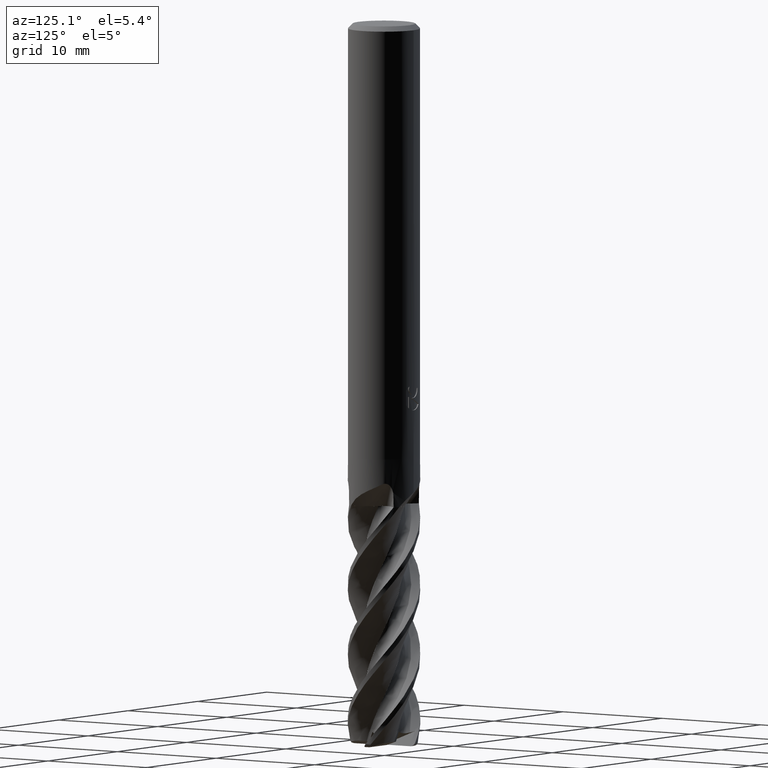
[diagram: clean part render]
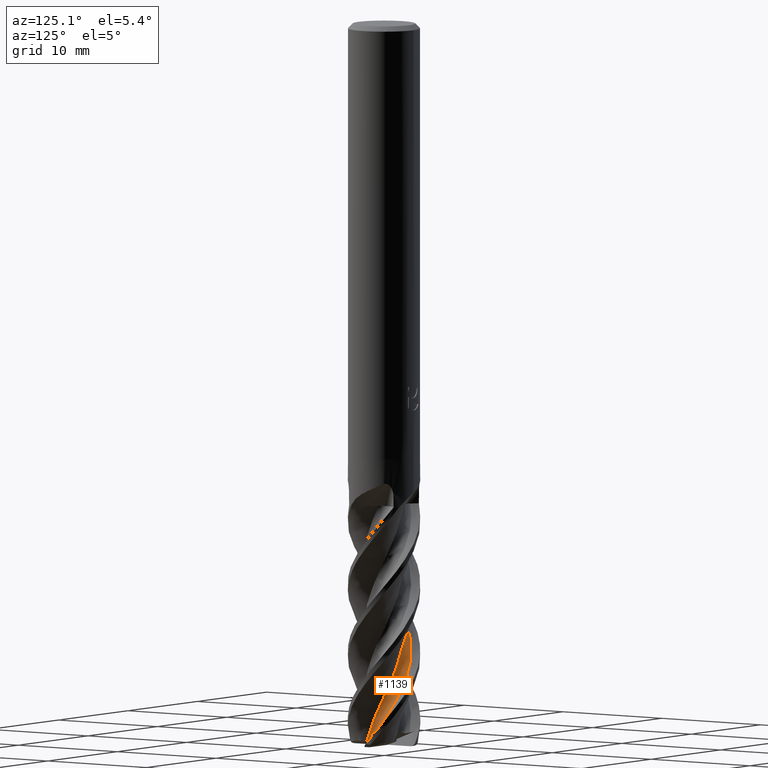
[diagram: same view with one face highlighted and labeled with its STEP entity id]
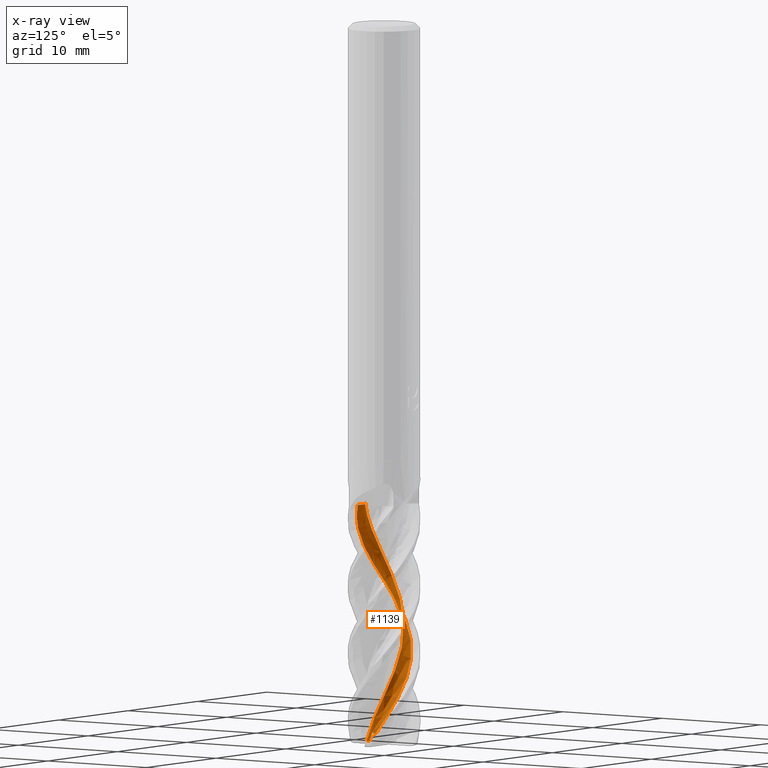
[diagram: x-ray of the same camera — body ghosted, the highlighted face saturated]
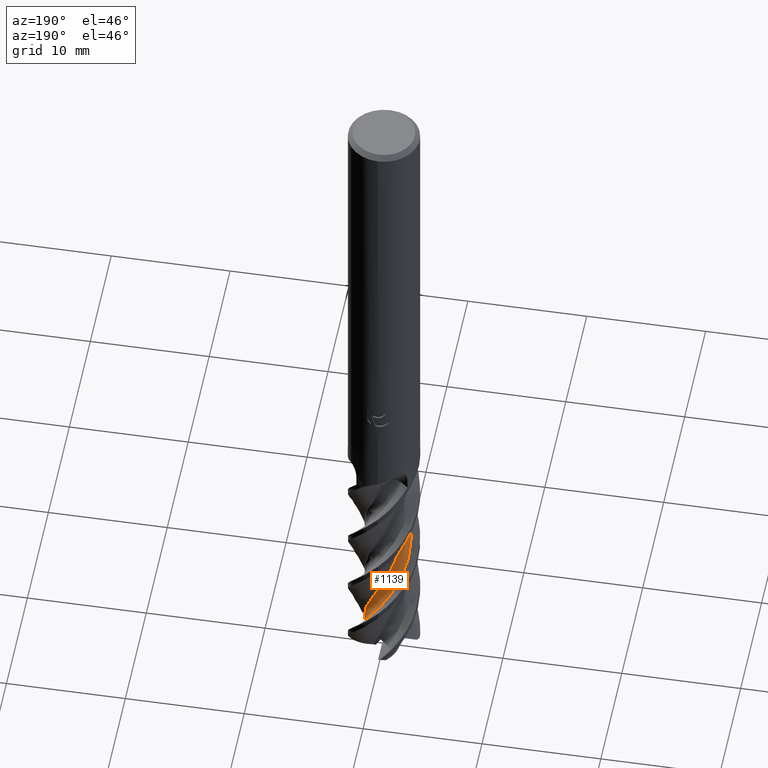
[diagram: same view with one face highlighted and labeled with its STEP entity id]
A machine part, auxiliary view. The second image highlights one B-rep face of the part: STEP entity #1139.
The next image is the same camera in x-ray: the body ghosted, the highlighted face saturated — about 0% of this face is hidden behind the body in this view.
A second angle (auxiliary view) of the same face is appended — the face is thin or edge-on in the first view.
In plain terms, the highlighted face is a freeform B-spline surface patch.
Its self-contained STEP definition (entity closure, byte-faithful):
#657=VERTEX_POINT('',#1724);
#757=EDGE_CURVE('',#899,#989,#1830,.T.);
#821=VERTEX_POINT('',#1900);
#879=EDGE_CURVE('',#1553,#821,#1960,.T.);
#899=VERTEX_POINT('',#1981);
#989=VERTEX_POINT('',#2084);
#1019=EDGE_CURVE('',#657,#1493,#2118,.T.);
#1139=ADVANCED_FACE('',(#2243),#2244,.T.);
#1277=EDGE_CURVE('',#1553,#657,#2395,.T.);
#1301=EDGE_CURVE('',#1493,#899,#2423,.T.);
#1383=EDGE_CURVE('',#989,#821,#2515,.T.);
#1493=VERTEX_POINT('',#2638);
#1553=VERTEX_POINT('',#2704);
#1724=CARTESIAN_POINT('',(1.55913148683489,-0.0771777074978753,-58.8312620025619));
#1830=B_SPLINE_CURVE_WITH_KNOTS('',3,(#4315,#4316,#4317,#4318,#4319,#4320,#4321,#4322,#4323,#4324,#4325,#4326,#4327,#4328,#4329,#4330,#4331,#4332,#4333,#4334,#4335,#4336,#4337,#4338,#4339,#4340,#4341,#4342,#4343,#4344,#4345,#4346,#4347,#4348,#4349,#4350,#4351,#4352,#4353,#4354,#4355,#4356,#4357,#4358,#4359,#4360,#4361,#4362,#4363,#4364,#4365,#4366,#4367,#4368,#4369,#4370,#4371,#4372,#4373,#4374,#4375,#4376,#4377,#4378,#4379,#4380,#4381,#4382,#4383,#4384,#4385,#4386),.UNSPECIFIED.,.F.,.F.,(4,2,2,2,2,2,2,2,2,2,2,2,2,2,2,2,2,2,2,2,2,2,2,2,2,2,2,2,2,2,2,2,2,2,2,4),(0.0,0.448318297829255,0.689089032956388,1.39962167265967,2.31232830153638,3.17750321488018,4.0669254036721,4.5764898940069,4.79388942944048,4.9822065424042,6.77223869122831,7.15940957587817,8.60558348584525,9.42205703376254,10.2644633741601,10.7461551644283,11.1789654040422,11.8625588402245,12.7524742966412,13.5908774424893,14.4561504792424,14.9472118092792,15.1609958396345,15.255651815448,17.0890225379084,17.5651052170319,18.2296710708743,19.0666260739815,19.9016060216238,20.7576823399661,21.1872094138051,21.4026894418029,21.5105964695324,21.5645873825565,21.5915915285666,21.6186538586869),.UNSPECIFIED.);
#1900=CARTESIAN_POINT('',(1.73794855813481,-1.44163714024313,-40.0000000000001));
#1960=B_SPLINE_CURVE_WITH_KNOTS('',3,(#5402,#5403,#5404,#5405,#5406,#5407,#5408,#5409,#5410,#5411,#5412,#5413,#5414,#5415,#5416,#5417,#5418,#5419,#5420,#5421,#5422,#5423,#5424,#5425,#5426,#5427,#5428,#5429,#5430,#5431,#5432,#5433,#5434,#5435,#5436,#5437,#5438,#5439,#5440,#5441,#5442,#5443,#5444,#5445,#5446,#5447,#5448,#5449,#5450,#5451,#5452,#5453,#5454),.UNSPECIFIED.,.F.,.F.,(4,1,2,1,2,1,2,1,2,1,2,1,2,1,2,1,2,1,2,1,2,1,2,1,2,1,2,1,2,1,2,1,2,1,4),(0.0,0.501751699894272,1.00350339978854,1.50525509968282,2.00700679957709,3.01051019936563,4.01401359915418,5.01751699894272,6.02102039873127,7.02452379851981,8.02802719830835,9.0315305980969,10.0350339978854,11.038537397674,12.0420407974625,13.0455441972511,14.0490475970396,15.0525509968282,16.0560543966167,17.0595577964053,18.0630611961938,19.0665645959823,20.0700679957709,21.0735713955594,22.077074795348,23.0805781951365,24.0840815949251,25.0875849947136,26.0910883945022,27.0945917942907,28.0980951940792,29.1015985938678,30.1051019936563,31.1086053934449,32.1121087932334),.UNSPECIFIED.);
#1981=CARTESIAN_POINT('',(1.47659576428755,-0.713407268816872,-59.6529244441849));
#2084=CARTESIAN_POINT('',(0.536014604338402,-1.54993666711349,-40.0));
#2118=B_SPLINE_CURVE_WITH_KNOTS('',3,(#6595,#6596,#6597,#6598,#6599,#6600,#6601,#6602,#6603,#6604),.UNSPECIFIED.,.F.,.F.,(4,2,2,2,4),(0.0,0.716243730236501,1.30451458158121,2.13571568332867,3.58329870178732),.UNSPECIFIED.);
#2243=FACE_OUTER_BOUND('',#7437,.T.);
#2244=B_SPLINE_SURFACE_WITH_KNOTS('',3,3,((#7438,#7439,#7440,#7441,#7442,#7443,#7444,#7445,#7446,#7447,#7448,#7449,#7450,#7451,#7452,#7453,#7454,#7455,#7456,#7457,#7458,#7459,#7460,#7461,#7462,#7463,#7464,#7465,#7466,#7467,#7468,#7469,#7470,#7471,#7472,#7473,#7474,#7475,#7476,#7477,#7478,#7479,#7480,#7481,#7482,#7483,#7484,#7485,#7486,#7487,#7488,#7489,#7490),(#7491,#7492,#7493,#7494,#7495,#7496,#7497,#7498,#7499,#7500,#7501,#7502,#7503,#7504,#7505,#7506,#7507,#7508,#7509,#7510,#7511,#7512,#7513,#7514,#7515,#7516,#7517,#7518,#7519,#7520,#7521,#7522,#7523,#7524,#7525,#7526,#7527,#7528,#7529,#7530,#7531,#7532,#7533,#7534,#7535,#7536,#7537,#7538,#7539,#7540,#7541,#7542,#7543),(#7544,#7545,#7546,#7547,#7548,#7549,#7550,#7551,#7552,#7553,#7554,#7555,#7556,#7557,#7558,#7559,#7560,#7561,#7562,#7563,#7564,#7565,#7566,#7567,#7568,#7569,#7570,#7571,#7572,#7573,#7574,#7575,#7576,#7577,#7578,#7579,#7580,#7581,#7582,#7583,#7584,#7585,#7586,#7587,#7588,#7589,#7590,#7591,#7592,#7593,#7594,#7595,#7596),(#7597,#7598,#7599,#7600,#7601,#7602,#7603,#7604,#7605,#7606,#7607,#7608,#7609,#7610,#7611,#7612,#7613,#7614,#7615,#7616,#7617,#7618,#7619,#7620,#7621,#7622,#7623,#7624,#7625,#7626,#7627,#7628,#7629,#7630,#7631,#7632,#7633,#7634,#7635,#7636,#7637,#7638,#7639,#7640,#7641,#7642,#7643,#7644,#7645,#7646,#7647,#7648,#7649),(#7650,#7651,#7652,#7653,#7654,#7655,#7656,#7657,#7658,#7659,#7660,#7661,#7662,#7663,#7664,#7665,#7666,#7667,#7668,#7669,#7670,#7671,#7672,#7673,#7674,#7675,#7676,#7677,#7678,#7679,#7680,#7681,#7682,#7683,#7684,#7685,#7686,#7687,#7688,#7689,#7690,#7691,#7692,#7693,#7694,#7695,#7696,#7697,#7698,#7699,#7700,#7701,#7702),(#7703,#7704,#7705,#7706,#7707,#7708,#7709,#7710,#7711,#7712,#7713,#7714,#7715,#7716,#7717,#7718,#7719,#7720,#7721,#7722,#7723,#7724,#7725,#7726,#7727,#7728,#7729,#7730,#7731,#7732,#7733,#7734,#7735,#7736,#7737,#7738,#7739,#7740,#7741,#7742,#7743,#7744,#7745,#7746,#7747,#7748,#7749,#7750,#7751,#7752,#7753,#7754,#7755)),.UNSPECIFIED.,.F.,.F.,.F.,(4,1,1,4),(4,1,2,1,2,1,2,1,2,1,2,1,2,1,2,1,2,1,2,1,2,1,2,1,2,1,2,1,2,1,2,1,2,1,4),(-6.43607550507338E-016,0.58904862246113,1.17809724492226,1.57079632656301),(0.0,0.501751699894272,1.00350339978854,1.50525509968282,2.00700679957709,3.01051019936563,4.01401359915418,5.01751699894272,6.02102039873127,7.02452379851981,8.02802719830835,9.0315305980969,10.0350339978854,11.038537397674,12.0420407974625,13.0455441972511,14.0490475970396,15.0525509968282,16.0560543966167,17.0595577964053,18.0630611961938,19.0665645959823,20.0700679957709,21.0735713955594,22.077074795348,23.0805781951365,24.0840815949251,25.0875849947136,26.0910883945022,27.0945917942907,28.0980951940792,29.1015985938678,30.1051019936563,31.1086053934449,32.1121087932334),.UNSPECIFIED.);
#2395=B_SPLINE_CURVE_WITH_KNOTS('',3,(#9114,#9115,#9116,#9117,#9118,#9119,#9120,#9121,#9122,#9123,#9124,#9125),.UNSPECIFIED.,.F.,.F.,(4,2,2,2,2,4),(0.0,0.442692172549244,0.762251802725725,1.01287056097506,1.22746000787781,1.45453468452057),.UNSPECIFIED.);
#2423=B_SPLINE_CURVE_WITH_KNOTS('',3,(#9169,#9170,#9171,#9172,#9173,#9174),.UNSPECIFIED.,.F.,.F.,(4,2,4),(0.0,0.33291198769719,0.650480489708979),.UNSPECIFIED.);
#2515=B_SPLINE_CURVE_WITH_KNOTS('',3,(#9756,#9757,#9758,#9759,#9760,#9761,#9762,#9763,#9764,#9765),.UNSPECIFIED.,.F.,.F.,(4,2,2,2,4),(0.0,0.3370134811731,0.674017681348794,1.01098296488401,1.34683004819463),.UNSPECIFIED.);
#2638=CARTESIAN_POINT('',(1.5027018054964,-0.421525296245017,-59.6444420772056));
#2704=CARTESIAN_POINT('',(2.16085376224468,0.655638816819924,-58.9342687731543));
#4315=CARTESIAN_POINT('',(1.2708138315464,-1.03714272322862,-60.4800060391713));
#4316=CARTESIAN_POINT('',(1.31009467769503,-0.988992490417532,-60.3440990333739));
#4317=CARTESIAN_POINT('',(1.34696826698313,-0.938127325940999,-60.2082600505392));
#4318=CARTESIAN_POINT('',(1.39946443478904,-0.855822527664659,-60.0002880644806));
#4319=CARTESIAN_POINT('',(1.41670830110982,-0.826839384949345,-59.9291209013588));
#4320=CARTESIAN_POINT('',(1.48315583058622,-0.706963364362708,-59.6355323299367));
#4321=CARTESIAN_POINT('',(1.52383543544748,-0.614287040075743,-59.4142313470476));
#4322=CARTESIAN_POINT('',(1.59630997381078,-0.398185526136353,-58.9108493861637));
#4323=CARTESIAN_POINT('',(1.62295485370494,-0.271487907809502,-58.6250115597516));
#4324=CARTESIAN_POINT('',(1.64464711174925,-0.018685567966346,-58.0747574785094));
#4325=CARTESIAN_POINT('',(1.64110856665258,0.103492089494872,-57.8201806563551));
#4326=CARTESIAN_POINT('',(1.60727952968408,0.349362254373966,-57.2779855419565));
#4327=CARTESIAN_POINT('',(1.57612069095903,0.470981215618738,-56.9997611831579));
#4328=CARTESIAN_POINT('',(1.50586707499256,0.654350420889149,-56.5666957760843));
#4329=CARTESIAN_POINT('',(1.47566541977084,0.71995710894879,-56.4088173923558));
#4330=CARTESIAN_POINT('',(1.42585114287187,0.81122865597555,-56.1845923840802));
#4331=CARTESIAN_POINT('',(1.41008429343736,0.838247482767412,-56.1176092441095));
#4332=CARTESIAN_POINT('',(1.3790101453971,0.888087996045202,-55.992795478888));
#4333=CARTESIAN_POINT('',(1.36411495116912,0.910724863997028,-55.9355587856445));
#4334=CARTESIAN_POINT('',(1.19585206517698,1.15307845554441,-55.3047197125019));
#4335=CARTESIAN_POINT('',(0.994254397203297,1.33217766217585,-54.7058990127672));
#4336=CARTESIAN_POINT('',(0.704870792458906,1.48195682001742,-54.0089068268171));
#4337=CARTESIAN_POINT('',(0.65274947112296,1.5055224716259,-53.888587172664));
#4338=CARTESIAN_POINT('',(0.395067177436503,1.60641062640064,-53.2918203811194));
#4339=CARTESIAN_POINT('',(0.179257054909459,1.64510875971828,-52.8050237411787));
#4340=CARTESIAN_POINT('',(-0.161349965331898,1.63679690024158,-52.0665130486851));
#4341=CARTESIAN_POINT('',(-0.281918152271388,1.6199994429108,-51.8130974196396));
#4342=CARTESIAN_POINT('',(-0.522247680548175,1.55969732178807,-51.2719420312113));
#4343=CARTESIAN_POINT('',(-0.639773193622085,1.51547006738979,-50.9937792552351));
#4344=CARTESIAN_POINT('',(-0.814316683523978,1.42570554498139,-50.5610847300632));
#4345=CARTESIAN_POINT('',(-0.876138224702155,1.38861137750509,-50.4035394404701));
#4346=CARTESIAN_POINT('',(-0.989468058905748,1.30966181730216,-50.1057660622586));
#4347=CARTESIAN_POINT('',(-1.03861475672541,1.27074886660428,-49.9742205097089));
#4348=CARTESIAN_POINT('',(-1.16208006591474,1.16136959814202,-49.6204156080778));
#4349=CARTESIAN_POINT('',(-1.23048525650303,1.08860645422925,-49.4017602681391));
#4350=CARTESIAN_POINT('',(-1.37045774785407,0.910324737842679,-48.9007227108504));
#4351=CARTESIAN_POINT('',(-1.43810798428499,0.799803897358053,-48.6144794864634));
#4352=CARTESIAN_POINT('',(-1.54309226877594,0.569205685724291,-48.065308578782));
#4353=CARTESIAN_POINT('',(-1.58059649346378,0.45342044656556,-47.8119204386996));
#4354=CARTESIAN_POINT('',(-1.63123921487933,0.210876956138567,-47.270733526751));
#4355=CARTESIAN_POINT('',(-1.64274464397875,0.0858128806680697,-46.9925188735106));
#4356=CARTESIAN_POINT('',(-1.63816880618675,-0.109913622389978,-46.5609253614479));
#4357=CARTESIAN_POINT('',(-1.63185552669435,-0.181200559177668,-46.4045361194361));
#4358=CARTESIAN_POINT('',(-1.61576721050612,-0.28359162856578,-46.1810491139168));
#4359=CARTESIAN_POINT('',(-1.60995580919077,-0.314680205633067,-46.113336636279));
#4360=CARTESIAN_POINT('',(-1.60018941412389,-0.35953705329656,-46.0157944545649));
#4361=CARTESIAN_POINT('',(-1.59708577384519,-0.372941869256595,-45.9867222881712));
#4362=CARTESIAN_POINT('',(-1.52990658664745,-0.647979531688378,-45.3851552494854));
#4363=CARTESIAN_POINT('',(-1.40522683379839,-0.887763095225326,-44.7849261888191));
#4364=CARTESIAN_POINT('',(-1.1817686955124,-1.13934524515546,-44.0612179766546));
#4365=CARTESIAN_POINT('',(-1.1333434651266,-1.18724626054775,-43.918444802022));
#4366=CARTESIAN_POINT('',(-1.00954833490707,-1.2958073990598,-43.5635763134667));
#4367=CARTESIAN_POINT('',(-0.932949194735177,-1.35202569673258,-43.3550742208025));
#4368=CARTESIAN_POINT('',(-0.751927107890717,-1.46253808576178,-42.8860188955915));
#4369=CARTESIAN_POINT('',(-0.643943924183604,-1.51345911853932,-42.6223652653747));
#4370=CARTESIAN_POINT('',(-0.416717658855852,-1.59085855003355,-42.1012025798716));
#4371=CARTESIAN_POINT('',(-0.30101548096699,-1.61631741072854,-41.8547391800408));
#4372=CARTESIAN_POINT('',(-0.0624477790613409,-1.64326345943383,-41.331726342239));
#4373=CARTESIAN_POINT('',(0.0586075059878854,-1.64353887008601,-41.0638180574698));
#4374=CARTESIAN_POINT('',(0.237973256692141,-1.62407635752213,-40.6652858919245));
#4375=CARTESIAN_POINT('',(0.297842596482396,-1.61420440371852,-40.5320085860932));
#4376=CARTESIAN_POINT('',(0.387294304846473,-1.59416633756238,-40.3325427150106));
#4377=CARTESIAN_POINT('',(0.417129101217417,-1.58659225391418,-40.2659553636122));
#4378=CARTESIAN_POINT('',(0.46178563255315,-1.57387609174369,-40.1661649151538));
#4379=CARTESIAN_POINT('',(0.476668380097446,-1.56940704106222,-40.1328866944553));
#4380=CARTESIAN_POINT('',(0.498964628076339,-1.56235884235108,-40.082992952662));
#4381=CARTESIAN_POINT('',(0.506394732793333,-1.55995107862067,-40.0663596357687));
#4382=CARTESIAN_POINT('',(0.517532228859161,-1.55625258446455,-40.04141592779));
#4383=CARTESIAN_POINT('',(0.521244052492172,-1.55500506874,-40.0331010525986));
#4384=CARTESIAN_POINT('',(0.528672626559672,-1.55247838775755,-40.0164564174521));
#4385=CARTESIAN_POINT('',(0.532329486222413,-1.55121979753668,-40.0082613265218));
#4386=CARTESIAN_POINT('',(0.536082824204837,-1.54991291461822,-39.9998470659905));
#5402=CARTESIAN_POINT('',(-0.104521920003124,-2.25507902704957,-66.0));
#5403=CARTESIAN_POINT('',(-0.0863595626596556,-2.25671684860701,-65.8333447389798));
#5404=CARTESIAN_POINT('',(0.00442346643488775,-2.26284060116593,-65.4999667116456));
#5405=CARTESIAN_POINT('',(0.210748564281333,-2.25268491183224,-65.1665728902797));
#5406=CARTESIAN_POINT('',(0.469916493233361,-2.21222090505494,-64.8332852620598));
#5407=CARTESIAN_POINT('',(0.706760546838514,-2.1530546300289,-64.5000146810505));
#5408=CARTESIAN_POINT('',(0.904790923913086,-2.07110786554954,-64.1667040099055));
#5409=CARTESIAN_POINT('',(1.18046123553611,-1.93591240457044,-63.6666708099607));
#5410=CARTESIAN_POINT('',(1.51618221675526,-1.71047335058246,-62.9999671475129));
#5411=CARTESIAN_POINT('',(1.79140924574996,-1.39220704727707,-62.3332668169848));
#5412=CARTESIAN_POINT('',(2.02551926504348,-1.02162377259908,-61.6666264384753));
#5413=CARTESIAN_POINT('',(2.19535261525276,-0.637368999300194,-61.000000807459));
#5414=CARTESIAN_POINT('',(2.2573712230988,-0.224340833578408,-60.3333169815289));
#5415=CARTESIAN_POINT('',(2.25870435453589,0.209372942387658,-59.6666411326101));
#5416=CARTESIAN_POINT('',(2.19930056781462,0.624059005008884,-58.999987131966));
#5417=CARTESIAN_POINT('',(2.03215779362683,1.00814419839989,-58.3333012943724));
#5418=CARTESIAN_POINT('',(1.80308260736231,1.3763977034266,-57.6666365096374));
#5419=CARTESIAN_POINT('',(1.53301177842222,1.69584708705543,-56.9999897378046));
#5420=CARTESIAN_POINT('',(1.18788313413204,1.93263117238619,-56.333303633545));
#5421=CARTESIAN_POINT('',(0.798017837302391,2.12339515573225,-55.6666363965383));
#5422=CARTESIAN_POINT('',(0.399242822215125,2.2509431911134,-54.9999883881478));
#5423=CARTESIAN_POINT('',(-0.0190042383487804,2.26841771304909,-54.3333025443456));
#5424=CARTESIAN_POINT('',(-0.450526114096298,2.22320391577324,-53.6666356246618));
#5425=CARTESIAN_POINT('',(-0.856090526340095,2.11972150262846,-52.9999876585992));
#5426=CARTESIAN_POINT('',(-1.21986456624996,1.91259600728308,-52.3333017066065));
#5427=CARTESIAN_POINT('',(-1.56165650532089,1.6452497675045,-51.6666348036077));
#5428=CARTESIAN_POINT('',(-1.85050389224038,1.34229290693284,-50.9999868993309));
#5429=CARTESIAN_POINT('',(-2.04890489879511,0.973693771872742,-50.3333009699371));
#5430=CARTESIAN_POINT('',(-2.19671752884611,0.565729119386141,-49.6666340207814));
#5431=CARTESIAN_POINT('',(-2.28076347209921,0.155673185494231,-48.9999860752535));
#5432=CARTESIAN_POINT('',(-2.25331625117468,-0.26202830163969,-48.3333001460266));
#5433=CARTESIAN_POINT('',(-2.16210153057402,-0.686247849314329,-47.6666332218745));
#5434=CARTESIAN_POINT('',(-2.0157306609015,-1.07840033163929,-46.9999852896659));
#5435=CARTESIAN_POINT('',(-1.77080268319587,-1.41786906085446,-46.3332993575053));
#5436=CARTESIAN_POINT('',(-1.46836579595081,-1.72902354700192,-45.6666324289086));
#5437=CARTESIAN_POINT('',(-1.13619886413586,-1.98372561290375,-44.9999845059049));
#5438=CARTESIAN_POINT('',(-0.74846508330088,-2.14146961882058,-44.3332985876889));
#5439=CARTESIAN_POINT('',(-0.327018833843669,-2.24469934457192,-43.6666316611363));
#5440=CARTESIAN_POINT('',(0.089685790708445,-2.28431210517847,-42.9999837265127));
#5441=CARTESIAN_POINT('',(0.502066793137427,-2.21224440415888,-42.3332978785806));
#5442=CARTESIAN_POINT('',(0.914092692600842,-2.07606785437617,-41.6666311076829));
#5443=CARTESIAN_POINT('',(1.2882727813598,-1.88850242076917,-40.9999831860147));
#5444=CARTESIAN_POINT('',(1.59949566699939,-1.60863410219239,-40.3332967944706));
#5445=CARTESIAN_POINT('',(1.87643220127376,-1.27460308779924,-39.6666291783685));
#5446=CARTESIAN_POINT('',(2.09411564973736,-0.916972780657394,-38.9999814655998));
#5447=CARTESIAN_POINT('',(2.20935526356745,-0.514576720111504,-38.3332975007246));
#5448=CARTESIAN_POINT('',(2.26680049960103,-0.0847349120484867,-37.6666329507791));
#5449=CARTESIAN_POINT('',(2.26162203034951,0.333573742071177,-36.9999835264793));
#5450=CARTESIAN_POINT('',(2.14559469117681,0.736783189966394,-36.3332918346846));
#5451=CARTESIAN_POINT('',(1.96502067663148,1.133453623714,-35.6666201391835));
#5452=CARTESIAN_POINT('',(1.73756097335626,1.48519331160343,-34.999979729325));
#5453=CARTESIAN_POINT('',(1.42995785303093,1.76065235074241,-34.3333095467125));
#5454=CARTESIAN_POINT('',(1.25298187367456,1.87858139220164,-33.9999806043565));
#6595=CARTESIAN_POINT('',(1.39517322393765,0.717255640632589,-57.2080274614276));
#6596=CARTESIAN_POINT('',(1.44597462312143,0.605404562720072,-57.4127446291927));
#6597=CARTESIAN_POINT('',(1.48416208906809,0.497348485384003,-57.619876488469));
#6598=CARTESIAN_POINT('',(1.53327410827831,0.304318804826664,-58.0063153493345));
#6599=CARTESIAN_POINT('',(1.54751577259945,0.220169507291741,-58.1809406906522));
#6600=CARTESIAN_POINT('',(1.56539043790865,0.0193929063219146,-58.6114322814071));
#6601=CARTESIAN_POINT('',(1.56209341913518,-0.0948702783668479,-58.8680052122458));
#6602=CARTESIAN_POINT('',(1.52215319060195,-0.394987569226075,-59.5687918751589));
#6603=CARTESIAN_POINT('',(1.46167168768433,-0.579805820876266,-60.0311951021305));
#6604=CARTESIAN_POINT('',(1.37077815211276,-0.746741778788928,-60.4800280431974));
#7437=EDGE_LOOP('',(#12037,#12038,#12039,#12040,#12041,#12042));
#7438=CARTESIAN_POINT('',(-0.926163339583484,-1.35357035971189,-66.0));
#7439=CARTESIAN_POINT('',(-0.919352472382497,-1.3655540884517,-65.8333879617757));
#7440=CARTESIAN_POINT('',(-0.870427522491671,-1.40996068997946,-65.4997549243363));
#7441=CARTESIAN_POINT('',(-0.738333374851927,-1.48337048326512,-65.1660444343593));
#7442=CARTESIAN_POINT('',(-0.560064409717137,-1.55515542522666,-64.8330246493476));
#7443=CARTESIAN_POINT('',(-0.389352119084143,-1.6076575225266,-64.5001077981812));
#7444=CARTESIAN_POINT('',(-0.234862630433355,-1.63283418050663,-64.1669188758209));
#7445=CARTESIAN_POINT('',(-0.0118245334700432,-1.65558675556274,-63.6666950580054));
#7446=CARTESIAN_POINT('',(0.283241195012276,-1.64612781641052,-62.9997848382805));
#7447=CARTESIAN_POINT('',(0.576778158237127,-1.55458561505339,-62.3329016630591));
#7448=CARTESIAN_POINT('',(0.864419505843289,-1.41345870752445,-61.6664119206335));
#7449=CARTESIAN_POINT('',(1.11778203550329,-1.2405493727654,-61.000017558079));
#7450=CARTESIAN_POINT('',(1.3156314675992,-1.00828715107919,-60.3332381300504));
#7451=CARTESIAN_POINT('',(1.48276479158494,-0.738970471722546,-59.6665117958063));
#7452=CARTESIAN_POINT('',(1.6057540940335,-0.458903148011033,-58.9999300148752));
#7453=CARTESIAN_POINT('',(1.65017748840034,-0.156129272500182,-58.3331386829307));
#7454=CARTESIAN_POINT('',(1.64884711090874,0.160813507443707,-57.6664860284751));
#7455=CARTESIAN_POINT('',(1.6045190184708,0.463010560095276,-56.9999520081245));
#7456=CARTESIAN_POINT('',(1.48172664570497,0.743044103075191,-56.3331585534376));
#7457=CARTESIAN_POINT('',(1.31229203430155,1.01120124448011,-55.6664895349321));
#7458=CARTESIAN_POINT('',(1.11416099091392,1.24400185144049,-54.9999473350725));
#7459=CARTESIAN_POINT('',(0.861407425032079,1.41616875041447,-54.3331556954346));
#7460=CARTESIAN_POINT('',(0.575590805497551,1.55348090932009,-53.6664888214681));
#7461=CARTESIAN_POINT('',(0.284204055012554,1.64563601876732,-52.9999469078344));
#7462=CARTESIAN_POINT('',(-0.021385316511778,1.65744300460808,-52.3331545287153));
#7463=CARTESIAN_POINT('',(-0.336538720458769,1.62214510914443,-51.6664877504615));
#7464=CARTESIAN_POINT('',(-0.632434820837932,1.54561091097475,-50.9999462421271));
#7465=CARTESIAN_POINT('',(-0.89770479152916,1.39344740610743,-50.3331540188921));
#7466=CARTESIAN_POINT('',(-1.14608035196629,1.1962909074468,-49.6664869410103));
#7467=CARTESIAN_POINT('',(-1.35625597999723,0.974401429618914,-48.9999451622427));
#7468=CARTESIAN_POINT('',(-1.50034222151823,0.704659245419243,-48.3331529380476));
#7469=CARTESIAN_POINT('',(-1.6062323052499,0.405748466155295,-47.6664860213348));
#7470=CARTESIAN_POINT('',(-1.66662031792024,0.10614678147571,-46.9999443255514));
#7471=CARTESIAN_POINT('',(-1.64559864930343,-0.198943783607144,-46.3331520838216));
#7472=CARTESIAN_POINT('',(-1.57672270653037,-0.508488620373513,-45.666485147548));
#7473=CARTESIAN_POINT('',(-1.46891376558163,-0.794469562259893,-44.9999435303786));
#7474=CARTESIAN_POINT('',(-1.28919675710246,-1.04189543809563,-44.3331513756491));
#7475=CARTESIAN_POINT('',(-1.06656017316841,-1.26770160894625,-43.6664844171526));
#7476=CARTESIAN_POINT('',(-0.82342057045922,-1.45288586776078,-42.9999426569064));
#7477=CARTESIAN_POINT('',(-0.539767465805318,-1.56723444073969,-42.3331509832084));
#7478=CARTESIAN_POINT('',(-0.231204737570808,-1.64047387214792,-41.6664851843635));
#7479=CARTESIAN_POINT('',(0.0731296000931702,-1.66839045770976,-40.9999437573857));
#7480=CARTESIAN_POINT('',(0.374172938445362,-1.61479895938695,-40.3331484334727));
#7481=CARTESIAN_POINT('',(0.674540964926818,-1.51314678506118,-39.6664765650375));
#7482=CARTESIAN_POINT('',(0.947378353434161,-1.37527035635019,-38.9999355898929));
#7483=CARTESIAN_POINT('',(1.17408852948118,-1.17006439969025,-38.3331565235671));
#7484=CARTESIAN_POINT('',(1.37464084129952,-0.924666046434468,-37.6665067438904));
#7485=CARTESIAN_POINT('',(1.53268836599899,-0.663280925895945,-36.999957968795));
#7486=CARTESIAN_POINT('',(1.61617182502415,-0.36832847966458,-36.3331261199909));
#7487=CARTESIAN_POINT('',(1.65577568920722,-0.0522612161225684,-35.6664204535276));
#7488=CARTESIAN_POINT('',(1.65025726807111,0.253519116327883,-34.9999154085371));
#7489=CARTESIAN_POINT('',(1.56603005028517,0.543089570036652,-34.3331967367904));
#7490=CARTESIAN_POINT('',(1.50139377501893,0.684385422037743,-33.9998721157176));
#7491=CARTESIAN_POINT('',(-0.756993867728619,-1.36141976692467,-66.0));
#7492=CARTESIAN_POINT('',(-0.750084171002813,-1.37127336508924,-65.833378963314));
#7493=CARTESIAN_POINT('',(-0.700807827888895,-1.40781216520582,-65.499799015621));
#7494=CARTESIAN_POINT('',(-0.569629344027165,-1.46573027212263,-65.1661544525322));
#7495=CARTESIAN_POINT('',(-0.394437192555459,-1.51855281897784,-64.8330789052868));
#7496=CARTESIAN_POINT('',(-0.228194566917464,-1.55359920801519,-64.5000884125715));
#7497=CARTESIAN_POINT('',(-0.0799465472325184,-1.56398411771324,-64.1668741433863));
#7498=CARTESIAN_POINT('',(0.132753232472,-1.56606250951193,-63.6666900100048));
#7499=CARTESIAN_POINT('',(0.410607741128802,-1.53140758879915,-62.9998227955417));
#7500=CARTESIAN_POINT('',(0.680089553649796,-1.41940317822456,-62.3329776777845));
#7501=CARTESIAN_POINT('',(0.939949525200906,-1.26100347748089,-61.6664565862383));
#7502=CARTESIAN_POINT('',(1.16436343568725,-1.07554436312024,-61.0000140654249));
#7503=CARTESIAN_POINT('',(1.33113127227612,-0.83886909136903,-60.3332545510029));
#7504=CARTESIAN_POINT('',(1.46584754677027,-0.56968854237173,-59.6665387170226));
#7505=CARTESIAN_POINT('',(1.55771405075675,-0.294309895366063,-58.9999419097941));
#7506=CARTESIAN_POINT('',(1.57338362769199,-0.00432232649074707,-58.3331725339229));
#7507=CARTESIAN_POINT('',(1.54465616886001,0.295300449820037,-57.6665173594041));
#7508=CARTESIAN_POINT('',(1.4764710700216,0.577030199264596,-56.9999598564205));
#7509=CARTESIAN_POINT('',(1.3360955870831,0.830990799826626,-56.3331887677222));
#7510=CARTESIAN_POINT('',(1.15261683729835,1.06990985853353,-55.6665200992255));
#7511=CARTESIAN_POINT('',(0.945119262192958,1.27267961240592,-54.9999558835641));
#7512=CARTESIAN_POINT('',(0.691303730293275,1.4134123848706,-54.3331862744288));
#7513=CARTESIAN_POINT('',(0.409100361832404,1.51850034521711,-53.6665193771284));
#7514=CARTESIAN_POINT('',(0.125709392334408,1.58023901712312,-52.9999553957437));
#7515=CARTESIAN_POINT('',(-0.164099956502485,1.56483930195473,-52.3331851679729));
#7516=CARTESIAN_POINT('',(-0.459088571488724,1.50414387439952,-51.6665183663852));
#7517=CARTESIAN_POINT('',(-0.732064751330246,1.4060715422385,-50.9999547107486));
#7518=CARTESIAN_POINT('',(-0.969522089567822,1.23922297486695,-50.3331846023088));
#7519=CARTESIAN_POINT('',(-1.18732940883934,1.03124164850141,-49.6665175710948));
#7520=CARTESIAN_POINT('',(-1.36664939012639,0.803260181168262,-48.9999536752263));
#7521=CARTESIAN_POINT('',(-1.47936938648419,0.535830816944076,-48.3331835841134));
#7522=CARTESIAN_POINT('',(-1.55360623953615,0.243967016288858,-47.6665166674007));
#7523=CARTESIAN_POINT('',(-1.58460903258369,-0.0444237884074198,-46.9999528646383));
#7524=CARTESIAN_POINT('',(-1.53822941713434,-0.330908737240926,-46.3331827218025));
#7525=CARTESIAN_POINT('',(-1.44626451391085,-0.617682962356118,-45.6665158321967));
#7526=CARTESIAN_POINT('',(-1.31949882138518,-0.878567765864772,-44.9999520480394));
#7527=CARTESIAN_POINT('',(-1.12816285268446,-1.09676771994203,-44.3331820266607));
#7528=CARTESIAN_POINT('',(-0.898040509108086,-1.29102226379838,-43.6665150681643));
#7529=CARTESIAN_POINT('',(-0.652151082990982,-1.44487550233913,-42.9999512126651));
#7530=CARTESIAN_POINT('',(-0.374159975754769,-1.52828458649918,-42.3331815571176));
#7531=CARTESIAN_POINT('',(-0.0759976044085766,-1.57080665857017,-41.6665155716013));
#7532=CARTESIAN_POINT('',(0.214040328376382,-1.57071054277488,-40.9999519740166));
#7533=CARTESIAN_POINT('',(0.493869526361869,-1.49390393173469,-40.333179296315));
#7534=CARTESIAN_POINT('',(0.769124456050257,-1.37173714747538,-39.6665083612366));
#7535=CARTESIAN_POINT('',(1.01497364403062,-1.2176998046398,-38.9999451156803));
#7536=CARTESIAN_POINT('',(1.21138154942394,-1.00407683969206,-38.3331858991124));
#7537=CARTESIAN_POINT('',(1.37977686569141,-0.754618687551077,-37.6665329926905));
#7538=CARTESIAN_POINT('',(1.50639375661863,-0.493850737962093,-36.999963296146));
#7539=CARTESIAN_POINT('',(1.55966172827996,-0.20785560263924,-36.3331606324378));
#7540=CARTESIAN_POINT('',(1.56973580401106,0.0945104193621749,-35.6664620128181));
#7541=CARTESIAN_POINT('',(1.5379154318034,0.383015086820583,-34.9999288121571));
#7542=CARTESIAN_POINT('',(1.4331425551599,0.64927130291753,-34.3332202094369));
#7543=CARTESIAN_POINT('',(1.35977072161363,0.777244636095004,-33.9998947016752));
#7544=CARTESIAN_POINT('',(-0.42380394508243,-1.47968949596792,-66.0));
#7545=CARTESIAN_POINT('',(-0.415405047010967,-1.48534765707808,-65.8333612977285));
#7546=CARTESIAN_POINT('',(-0.360655478838259,-1.50638204460474,-65.4998855755103));
#7547=CARTESIAN_POINT('',(-0.221911632214913,-1.53279712926464,-65.1663704377312));
#7548=CARTESIAN_POINT('',(-0.0413667256319503,-1.54587260274627,-64.8331854208313));
#7549=CARTESIAN_POINT('',(0.126532457197295,-1.54333717299827,-64.5000503543184));
#7550=CARTESIAN_POINT('',(0.271282010651475,-1.52038760294717,-64.1667863256283));
#7551=CARTESIAN_POINT('',(0.475866305761008,-1.47489571852143,-63.6666800991169));
#7552=CARTESIAN_POINT('',(0.734617469587461,-1.37946941428175,-62.9998973036585));
#7553=CARTESIAN_POINT('',(0.968453143852235,-1.21199993185742,-62.3331269277439));
#7554=CARTESIAN_POINT('',(1.18328890337332,-1.00224697576157,-61.6665442542996));
#7555=CARTESIAN_POINT('',(1.35748266407453,-0.774161919663176,-61.0000072278069));
#7556=CARTESIAN_POINT('',(1.46483495855737,-0.509821976370173,-60.3332867690244));
#7557=CARTESIAN_POINT('',(1.53470910978565,-0.221254789757912,-59.666591587765));
#7558=CARTESIAN_POINT('',(1.56155823013531,0.0636309863342168,-58.999965249572));
#7559=CARTESIAN_POINT('',(1.51203230824672,0.345512442542425,-58.3332389947002));
#7560=CARTESIAN_POINT('',(1.41807036395533,0.627149356959418,-57.6665788629043));
#7561=CARTESIAN_POINT('',(1.28981416197939,0.882459093463872,-56.99997528684));
#7562=CARTESIAN_POINT('',(1.09850154764076,1.09499663493116,-56.3332480434532));
#7563=CARTESIAN_POINT('',(0.869236040129814,1.28402348426016,-55.6665801431694));
#7564=CARTESIAN_POINT('',(0.624815412280673,1.43248069498326,-54.9999726579443));
#7565=CARTESIAN_POINT('',(0.349815879782805,1.51106149963498,-54.3332462820031));
#7566=CARTESIAN_POINT('',(0.0552890795344245,1.54958395728202,-53.6665793882945));
#7567=CARTESIAN_POINT('',(-0.230574063053619,1.54571083430734,-52.9999720455245));
#7568=CARTESIAN_POINT('',(-0.505358534640369,1.46639083079924,-52.3332453209791));
#7569=CARTESIAN_POINT('',(-0.775465676050928,1.34273025170164,-51.6665784687333));
#7570=CARTESIAN_POINT('',(-1.01571602095854,1.18773190632003,-50.9999713191531));
#7571=CARTESIAN_POINT('',(-1.20651746221378,0.974680640751137,-50.3332446798608));
#7572=CARTESIAN_POINT('',(-1.36982303927885,0.726537133445001,-49.666577667061));
#7573=CARTESIAN_POINT('',(-1.49119701700396,0.467673989830873,-48.9999704048624));
#7574=CARTESIAN_POINT('',(-1.53985407731674,0.185843608929405,-48.3332437505894));
#7575=CARTESIAN_POINT('',(-1.54658376358406,-0.111137819719808,-47.6665768288141));
#7576=CARTESIAN_POINT('',(-1.51208509266571,-0.394952629295013,-46.9999695906555));
#7577=CARTESIAN_POINT('',(-1.40376492572203,-0.659646869848931,-46.333242948065));
#7578=CARTESIAN_POINT('',(-1.2518664770596,-0.914933996152917,-45.666575993722));
#7579=CARTESIAN_POINT('',(-1.07201187718226,-1.13718009899086,-44.999968820188));
#7580=CARTESIAN_POINT('',(-0.839741305159635,-1.30404147777909,-44.3332421776822));
#7581=CARTESIAN_POINT('',(-0.575530896746744,-1.43980484538479,-43.6665752644454));
#7582=CARTESIAN_POINT('',(-0.305148158554342,-1.53273566234152,-42.9999679868355));
#7583=CARTESIAN_POINT('',(-0.0197054840925936,-1.55090330390553,-42.3332416015619));
#7584=CARTESIAN_POINT('',(0.276307924963109,-1.52575422125305,-41.6665752052732));
#7585=CARTESIAN_POINT('',(0.554773579655132,-1.46102737095011,-40.9999680727391));
#7586=CARTESIAN_POINT('',(0.806301539723247,-1.32497908582257,-40.3332399721516));
#7587=CARTESIAN_POINT('',(1.04382863584588,-1.14660097146847,-39.6665706968246));
#7588=CARTESIAN_POINT('',(1.2455638808163,-0.943912585629823,-38.9999639030778));
#7589=CARTESIAN_POINT('',(1.3865412131325,-0.695098828795235,-38.3332434820574));
#7590=CARTESIAN_POINT('',(1.4931584455815,-0.418029542947415,-37.6665846107026));
#7591=CARTESIAN_POINT('',(1.55661204934399,-0.139434120442812,-36.9999737332968));
#7592=CARTESIAN_POINT('',(1.54408657552008,0.146990471293963,-36.3332283429911));
#7593=CARTESIAN_POINT('',(1.48686013960911,0.439893184980071,-35.6665436452669));
#7594=CARTESIAN_POINT('',(1.39201991228238,0.709836448285491,-34.999955085875));
#7595=CARTESIAN_POINT('',(1.23206457010348,0.941977239605104,-34.3332663269952));
#7596=CARTESIAN_POINT('',(1.13316256085961,1.04863364264168,-33.9999390421468));
#7597=CARTESIAN_POINT('',(-0.142097205096924,-1.85763747533456,-66.0));
#7598=CARTESIAN_POINT('',(-0.128939311835049,-1.85974845377017,-65.8333465168389));
#7599=CARTESIAN_POINT('',(-0.0566361262927916,-1.86765168370585,-65.499958000448));
#7600=CARTESIAN_POINT('',(0.113833309116489,-1.86475178872421,-65.1665511531925));
#7601=CARTESIAN_POINT('',(0.329758922131498,-1.83773470108057,-64.833274542704));
#7602=CARTESIAN_POINT('',(0.527337544384007,-1.79476844422025,-64.5000185108562));
#7603=CARTESIAN_POINT('',(0.692905678600749,-1.73227689682411,-64.1667128482651));
#7604=CARTESIAN_POINT('',(0.923737600363635,-1.62804253324074,-63.6666718066129));
#7605=CARTESIAN_POINT('',(1.20633704581699,-1.4511002413842,-62.9999596494588));
#7606=CARTESIAN_POINT('',(1.44175263405327,-1.1957405715014,-62.333251796392));
#7607=CARTESIAN_POINT('',(1.64472670638539,-0.895707300194653,-61.6666176156621));
#7608=CARTESIAN_POINT('',(1.79483345342595,-0.583166336411314,-61.0000014973199));
#7609=CARTESIAN_POINT('',(1.85682165306429,-0.244141935358277,-60.3333137355698));
#7610=CARTESIAN_POINT('',(1.86918358525335,0.113954188345634,-59.6666358152437));
#7611=CARTESIAN_POINT('',(1.83100679061005,0.457547666885962,-58.9999847797597));
#7612=CARTESIAN_POINT('',(1.70320841994508,0.778745129551313,-58.3332946088104));
#7613=CARTESIAN_POINT('',(1.52361118966819,1.08877559594606,-57.6666303168877));
#7614=CARTESIAN_POINT('',(1.30919453916136,1.35930452077073,-56.9999881865826));
#7615=CARTESIAN_POINT('',(1.03073084666451,1.56366383208863,-56.3332976677));
#7616=CARTESIAN_POINT('',(0.713748750202802,1.73130896566804,-55.6666303540633));
#7617=CARTESIAN_POINT('',(0.388161729009735,1.84691780054876,-54.9999866996576));
#7618=CARTESIAN_POINT('',(0.0436339999345398,1.87229994420611,-54.3332965054791));
#7619=CARTESIAN_POINT('',(-0.313869226717599,1.84616697237676,-53.6666295848536));
#7620=CARTESIAN_POINT('',(-0.651082451381943,1.77139706204401,-52.9999859860681));
#7621=CARTESIAN_POINT('',(-0.956568961418035,1.61009222870645,-52.3332956469055));
#7622=CARTESIAN_POINT('',(-1.24574483587159,1.39820310290983,-51.6666287608214));
#7623=CARTESIAN_POINT('',(-1.49189448571259,1.15585872919331,-50.9999852260233));
#7624=CARTESIAN_POINT('',(-1.66520969681167,0.857027496501623,-50.3332949215032));
#7625=CARTESIAN_POINT('',(-1.79785696440496,0.523986971349995,-49.6666279749619));
#7626=CARTESIAN_POINT('',(-1.87787914318348,0.187962174373858,-48.9999843883706));
#7627=CARTESIAN_POINT('',(-1.86619399898168,-0.157293489889439,-48.3332940950784));
#7628=CARTESIAN_POINT('',(-1.80188588849676,-0.509961615666275,-47.6666271630354));
#7629=CARTESIAN_POINT('',(-1.69139096057532,-0.837232123140393,-46.9999836010497));
#7630=CARTESIAN_POINT('',(-1.49826783662304,-1.12366199752972,-46.3332933111724));
#7631=CARTESIAN_POINT('',(-1.25660735790821,-1.38844972636226,-45.666626359428));
#7632=CARTESIAN_POINT('',(-0.989279369585105,-1.60719814984856,-44.9999828169623));
#7633=CARTESIAN_POINT('',(-0.673599067769409,-1.74747972601587,-44.3332925509307));
#7634=CARTESIAN_POINT('',(-0.328268937956792,-1.84366253734983,-43.6666255861597));
#7635=CARTESIAN_POINT('',(0.0143993195256947,-1.88720933852048,-42.9999820431922));
#7636=CARTESIAN_POINT('',(0.356437178200933,-1.83857981971908,-42.3332918428935));
#7637=CARTESIAN_POINT('',(0.700204022522344,-1.73682756514122,-41.6666250989799));
#7638=CARTESIAN_POINT('',(1.01372514424501,-1.59188630701388,-40.9999815744097));
#7639=CARTESIAN_POINT('',(1.27777254095087,-1.36920321142103,-40.3332906781019));
#7640=CARTESIAN_POINT('',(1.51512492197453,-1.10056545312652,-39.66662291488));
#7641=CARTESIAN_POINT('',(1.70400549719813,-0.811266442828027,-38.9999795684924));
#7642=CARTESIAN_POINT('',(1.80961180415241,-0.482378141325093,-38.3332917083094));
#7643=CARTESIAN_POINT('',(1.86820646251333,-0.128933402142092,-37.6666277532207));
#7644=CARTESIAN_POINT('',(1.87485364691509,0.216218873613509,-36.9999824827755));
#7645=CARTESIAN_POINT('',(1.78971665304282,0.551863858973689,-36.3332850096489));
#7646=CARTESIAN_POINT('',(1.65087892862573,0.8841377163044,-35.6666119343504));
#7647=CARTESIAN_POINT('',(1.47243185547125,1.18019580029458,-34.9999770885049));
#7648=CARTESIAN_POINT('',(1.22603364010281,1.41540385776899,-34.3333048880769));
#7649=CARTESIAN_POINT('',(1.08303928496426,1.51734572729311,-33.9999761419397));
#7650=CARTESIAN_POINT('',(-0.0993002598787526,-2.14229885641562,-66.0));
#7651=CARTESIAN_POINT('',(-0.0825579970118601,-2.14387093216275,-65.8333443981618));
#7652=CARTESIAN_POINT('',(0.00297981061716382,-2.14976095124446,-65.4999683814899));
#7653=CARTESIAN_POINT('',(0.198977170977144,-2.14021671312979,-65.1665770576599));
#7654=CARTESIAN_POINT('',(0.445503712431982,-2.10180519676333,-64.8332873167481));
#7655=CARTESIAN_POINT('',(0.670710928504247,-2.04561987042354,-64.5000139470377));
#7656=CARTESIAN_POINT('',(0.858880552545349,-1.96783506299864,-64.1667023154518));
#7657=CARTESIAN_POINT('',(1.12076876732864,-1.83953319968951,-63.6666706190864));
#7658=CARTESIAN_POINT('',(1.43969357460326,-1.6255699658231,-62.9999685843635));
#7659=CARTESIAN_POINT('',(1.70128072482092,-1.32334179046578,-62.3332696974523));
#7660=CARTESIAN_POINT('',(1.92387740656622,-0.971280589891428,-61.6666281289129));
#7661=CARTESIAN_POINT('',(2.0853461716511,-0.606325733434559,-61.000000673629));
#7662=CARTESIAN_POINT('',(2.14442481729271,-0.214018924452069,-60.3333176078971));
#7663=CARTESIAN_POINT('',(2.14585086141853,0.198083492904107,-59.666642147877));
#7664=CARTESIAN_POINT('',(2.08957493648178,0.59202133774423,-58.9999875852321));
#7665=CARTESIAN_POINT('',(1.93095828066563,0.956938168498492,-58.3333025754597));
#7666=CARTESIAN_POINT('',(1.7134315914337,1.30692810982577,-57.666637697389));
#7667=CARTESIAN_POINT('',(1.45700722236578,1.61047418511539,-56.9999900351106));
#7668=CARTESIAN_POINT('',(1.12926171160667,1.83553793916694,-56.3333047767962));
#7669=CARTESIAN_POINT('',(0.758889405715648,2.01694110573032,-55.6666375553454));
#7670=CARTESIAN_POINT('',(0.380135585676326,2.13824679653504,-54.999988711579));
#7671=CARTESIAN_POINT('',(-0.0171553228351097,2.15501543142304,-54.333303702118));
#7672=CARTESIAN_POINT('',(-0.427194636151501,2.11221261845529,-53.6666367824342));
#7673=CARTESIAN_POINT('',(-0.812481959889803,2.01406275409839,-52.9999879761963));
#7674=CARTESIAN_POINT('',(-1.15811925007347,1.81745908702427,-52.3333028744402));
#7675=CARTESIAN_POINT('',(-1.48298084364126,1.5635577323746,-51.6666359558855));
#7676=CARTESIAN_POINT('',(-1.75747100597336,1.27588225721014,-50.9999872233178));
#7677=CARTESIAN_POINT('',(-1.94608382137416,0.925825853308855,-50.3333021292023));
#7678=CARTESIAN_POINT('',(-2.08668193916174,0.538240752516664,-49.6666351800465));
#7679=CARTESIAN_POINT('',(-2.16666861285156,0.148755654214815,-48.9999864059151));
#7680=CARTESIAN_POINT('',(-2.14076536482917,-0.248035155861068,-48.333301291224));
#7681=CARTESIAN_POINT('',(-2.05425073555908,-0.651153019584305,-47.6666343981838));
#7682=CARTESIAN_POINT('',(-1.91535574950956,-1.02371610356961,-46.9999856126518));
#7683=CARTESIAN_POINT('',(-1.68283320622725,-1.34628077442423,-46.3333005032793));
#7684=CARTESIAN_POINT('',(-1.39557826284713,-1.6420441374839,-45.6666336057946));
#7685=CARTESIAN_POINT('',(-1.08014335825725,-1.88411004521263,-44.9999848289559));
#7686=CARTESIAN_POINT('',(-0.711894295624395,-2.03411002168858,-44.3332997330723));
#7687=CARTESIAN_POINT('',(-0.311482967162382,-2.13235134725735,-43.6666328376316));
#7688=CARTESIAN_POINT('',(0.0843341303514527,-2.17013298250112,-42.9999840445575));
#7689=CARTESIAN_POINT('',(0.476089182121538,-2.10184200339435,-42.3332990330651));
#7690=CARTESIAN_POINT('',(0.867637536177325,-1.97260107856826,-41.6666322621674));
#7691=CARTESIAN_POINT('',(1.22314344407504,-1.794568445897,-40.9999834866248));
#7692=CARTESIAN_POINT('',(1.51889100148135,-1.52884443712866,-40.3332979811132));
#7693=CARTESIAN_POINT('',(1.78215280220658,-1.21155685247364,-39.6666303650111));
#7694=CARTESIAN_POINT('',(1.98906411111661,-0.871919759180161,-38.9999818415152));
#7695=CARTESIAN_POINT('',(2.09869440039033,-0.489725772846874,-38.3332986008078));
#7696=CARTESIAN_POINT('',(2.15343525297772,-0.0813222322421064,-37.6666339575266));
#7697=CARTESIAN_POINT('',(2.14867032581898,0.316032705978444,-36.9999837174869));
#7698=CARTESIAN_POINT('',(2.03861653638312,0.69909909580542,-36.3332931508895));
#7699=CARTESIAN_POINT('',(1.86717865591884,1.07608391106416,-35.6666217042835));
#7700=CARTESIAN_POINT('',(1.65123781619699,1.41029012341138,-34.9999802349634));
#7701=CARTESIAN_POINT('',(1.35917888819044,1.67205360651352,-34.3333104488475));
#7702=CARTESIAN_POINT('',(1.19108517238565,1.78415983220857,-33.9999814598237));
#7703=CARTESIAN_POINT('',(-0.104521920003124,-2.25507902704957,-66.0));
#7704=CARTESIAN_POINT('',(-0.0863595626596556,-2.25671684860701,-65.8333447389798));
#7705=CARTESIAN_POINT('',(0.00442346643488775,-2.26284060116593,-65.4999667116456));
#7706=CARTESIAN_POINT('',(0.210748564281333,-2.25268491183224,-65.1665728902797));
#7707=CARTESIAN_POINT('',(0.469916493233361,-2.21222090505494,-64.8332852620598));
#7708=CARTESIAN_POINT('',(0.706760546838514,-2.1530546300289,-64.5000146810505));
#7709=CARTESIAN_POINT('',(0.904790923913086,-2.07110786554954,-64.1667040099055));
#7710=CARTESIAN_POINT('',(1.18046123553611,-1.93591240457044,-63.6666708099607));
#7711=CARTESIAN_POINT('',(1.51618221675526,-1.71047335058246,-62.9999671475129));
#7712=CARTESIAN_POINT('',(1.79140924574996,-1.39220704727707,-62.3332668169848));
#7713=CARTESIAN_POINT('',(2.02551926504348,-1.02162377259908,-61.6666264384753));
#7714=CARTESIAN_POINT('',(2.19535261525276,-0.637368999300194,-61.000000807459));
#7715=CARTESIAN_POINT('',(2.2573712230988,-0.224340833578408,-60.3333169815289));
#7716=CARTESIAN_POINT('',(2.25870435453589,0.209372942387658,-59.6666411326101));
#7717=CARTESIAN_POINT('',(2.19930056781462,0.624059005008884,-58.999987131966));
#7718=CARTESIAN_POINT('',(2.03215779362683,1.00814419839989,-58.3333012943724));
#7719=CARTESIAN_POINT('',(1.80308260736231,1.3763977034266,-57.6666365096374));
#7720=CARTESIAN_POINT('',(1.53301177842222,1.69584708705543,-56.9999897378046));
#7721=CARTESIAN_POINT('',(1.18788313413204,1.93263117238619,-56.333303633545));
#7722=CARTESIAN_POINT('',(0.798017837302391,2.12339515573225,-55.6666363965383));
#7723=CARTESIAN_POINT('',(0.399242822215125,2.2509431911134,-54.9999883881478));
#7724=CARTESIAN_POINT('',(-0.0190042383487804,2.26841771304909,-54.3333025443456));
#7725=CARTESIAN_POINT('',(-0.450526114096298,2.22320391577324,-53.6666356246618));
#7726=CARTESIAN_POINT('',(-0.856090526340095,2.11972150262846,-52.9999876585992));
#7727=CARTESIAN_POINT('',(-1.21986456624996,1.91259600728308,-52.3333017066065));
#7728=CARTESIAN_POINT('',(-1.56165650532089,1.6452497675045,-51.6666348036077));
#7729=CARTESIAN_POINT('',(-1.85050389224038,1.34229290693284,-50.9999868993309));
#7730=CARTESIAN_POINT('',(-2.04890489879511,0.973693771872742,-50.3333009699371));
#7731=CARTESIAN_POINT('',(-2.19671752884611,0.565729119386141,-49.6666340207814));
#7732=CARTESIAN_POINT('',(-2.28076347209921,0.155673185494231,-48.9999860752535));
#7733=CARTESIAN_POINT('',(-2.25331625117468,-0.26202830163969,-48.3333001460266));
#7734=CARTESIAN_POINT('',(-2.16210153057402,-0.686247849314329,-47.6666332218745));
#7735=CARTESIAN_POINT('',(-2.0157306609015,-1.07840033163929,-46.9999852896659));
#7736=CARTESIAN_POINT('',(-1.77080268319587,-1.41786906085446,-46.3332993575053));
#7737=CARTESIAN_POINT('',(-1.46836579595081,-1.72902354700192,-45.6666324289086));
#7738=CARTESIAN_POINT('',(-1.13619886413586,-1.98372561290375,-44.9999845059049));
#7739=CARTESIAN_POINT('',(-0.74846508330088,-2.14146961882058,-44.3332985876889));
#7740=CARTESIAN_POINT('',(-0.327018833843669,-2.24469934457192,-43.6666316611363));
#7741=CARTESIAN_POINT('',(0.089685790708445,-2.28431210517847,-42.9999837265127));
#7742=CARTESIAN_POINT('',(0.502066793137427,-2.21224440415888,-42.3332978785806));
#7743=CARTESIAN_POINT('',(0.914092692600842,-2.07606785437617,-41.6666311076829));
#7744=CARTESIAN_POINT('',(1.2882727813598,-1.88850242076917,-40.9999831860147));
#7745=CARTESIAN_POINT('',(1.59949566699939,-1.60863410219239,-40.3332967944706));
#7746=CARTESIAN_POINT('',(1.87643220127376,-1.27460308779924,-39.6666291783685));
#7747=CARTESIAN_POINT('',(2.09411564973736,-0.916972780657394,-38.9999814655998));
#7748=CARTESIAN_POINT('',(2.20935526356745,-0.514576720111504,-38.3332975007246));
#7749=CARTESIAN_POINT('',(2.26680049960103,-0.0847349120484867,-37.6666329507791));
#7750=CARTESIAN_POINT('',(2.26162203034951,0.333573742071177,-36.9999835264793));
#7751=CARTESIAN_POINT('',(2.14559469117681,0.736783189966394,-36.3332918346846));
#7752=CARTESIAN_POINT('',(1.96502067663148,1.133453623714,-35.6666201391835));
#7753=CARTESIAN_POINT('',(1.73756097335626,1.48519331160343,-34.999979729325));
#7754=CARTESIAN_POINT('',(1.42995785303093,1.76065235074241,-34.3333095467125));
#7755=CARTESIAN_POINT('',(1.25298187367456,1.87858139220164,-33.9999806043565));
#9114=CARTESIAN_POINT('',(2.16085376224466,0.655638816819885,-58.9342687731544));
#9115=CARTESIAN_POINT('',(2.03556712803066,0.589588393092087,-58.9756904086051));
#9116=CARTESIAN_POINT('',(1.92027346253411,0.50835245125227,-58.9989476953761));
#9117=CARTESIAN_POINT('',(1.75510287563052,0.351319025144701,-59.0027292609665));
#9118=CARTESIAN_POINT('',(1.69315639850781,0.277599969807721,-58.9933769755107));
#9119=CARTESIAN_POINT('',(1.60937056962331,0.136128381213531,-58.9503851190044));
#9120=CARTESIAN_POINT('',(1.58278851706052,0.0721757366566558,-58.9228909295329));
#9121=CARTESIAN_POINT('',(1.55761740203596,-0.0458828469228415,-58.8550795674963));
#9122=CARTESIAN_POINT('',(1.55603013284166,-0.0979322151162485,-58.8183962333567));
#9123=CARTESIAN_POINT('',(1.57262688884113,-0.197507414968026,-58.7342064376113));
#9124=CARTESIAN_POINT('',(1.5916813346503,-0.242979807277465,-58.6875707164009));
#9125=CARTESIAN_POINT('',(1.61894319416576,-0.282177593871215,-58.63963659007));
#9169=CARTESIAN_POINT('',(1.64251671577749,-0.10807899852835,-59.5990134590283));
#9170=CARTESIAN_POINT('',(1.58310069155342,-0.199793360193223,-59.6183188955705));
#9171=CARTESIAN_POINT('',(1.53591999858707,-0.300679389876122,-59.6336488319997));
#9172=CARTESIAN_POINT('',(1.47859775361079,-0.508462374857355,-59.6522739584248));
#9173=CARTESIAN_POINT('',(1.46704423103359,-0.614341751238455,-59.6560279254685));
#9174=CARTESIAN_POINT('',(1.47712557001297,-0.71914051189037,-59.6527522998697));
#9756=CARTESIAN_POINT('',(0.532099615147199,-1.55455887713562,-40.0));
#9757=CARTESIAN_POINT('',(0.604403991022863,-1.4685829234202,-40.0));
#9758=CARTESIAN_POINT('',(0.692810635201721,-1.39755098325853,-40.0));
#9759=CARTESIAN_POINT('',(0.891871377733571,-1.29337536928806,-40.0));
#9760=CARTESIAN_POINT('',(1.00062290189884,-1.26122602350722,-40.0));
#9761=CARTESIAN_POINT('',(1.2243142481411,-1.24042842100733,-40.0));
#9762=CARTESIAN_POINT('',(1.33711507106168,-1.25197399230986,-40.0));
#9763=CARTESIAN_POINT('',(1.55158373116696,-1.31754985369966,-40.0));
#9764=CARTESIAN_POINT('',(1.65124904532335,-1.3708158866637,-40.0));
#9765=CARTESIAN_POINT('',(1.73794855813488,-1.44163714024304,-40.0));
#12037=ORIENTED_EDGE('',*,*,#1301,.F.);
#12038=ORIENTED_EDGE('',*,*,#1019,.F.);
#12039=ORIENTED_EDGE('',*,*,#1277,.F.);
#12040=ORIENTED_EDGE('',*,*,#879,.T.);
#12041=ORIENTED_EDGE('',*,*,#1383,.F.);
#12042=ORIENTED_EDGE('',*,*,#757,.F.);